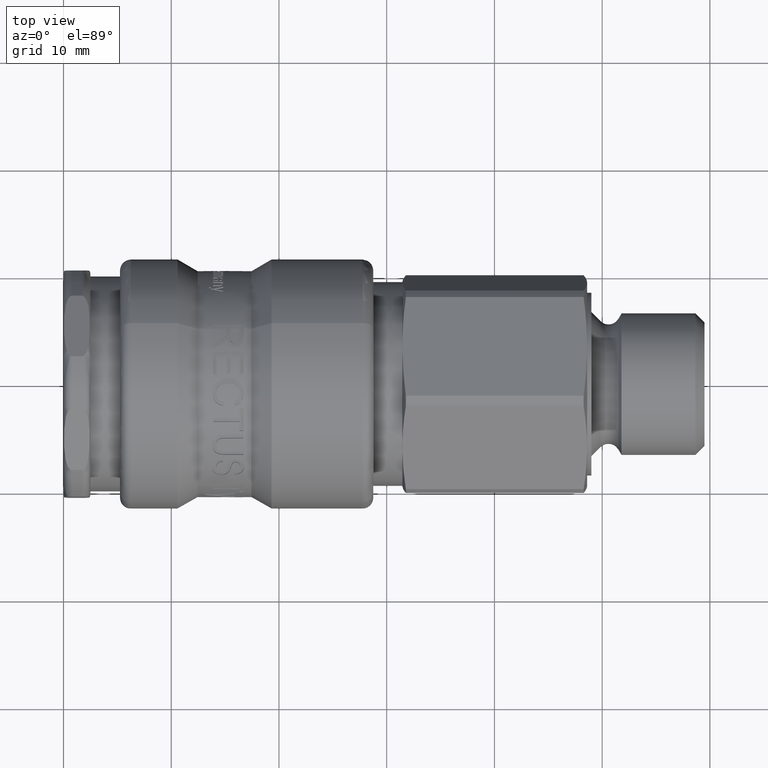
[diagram: clean part render]
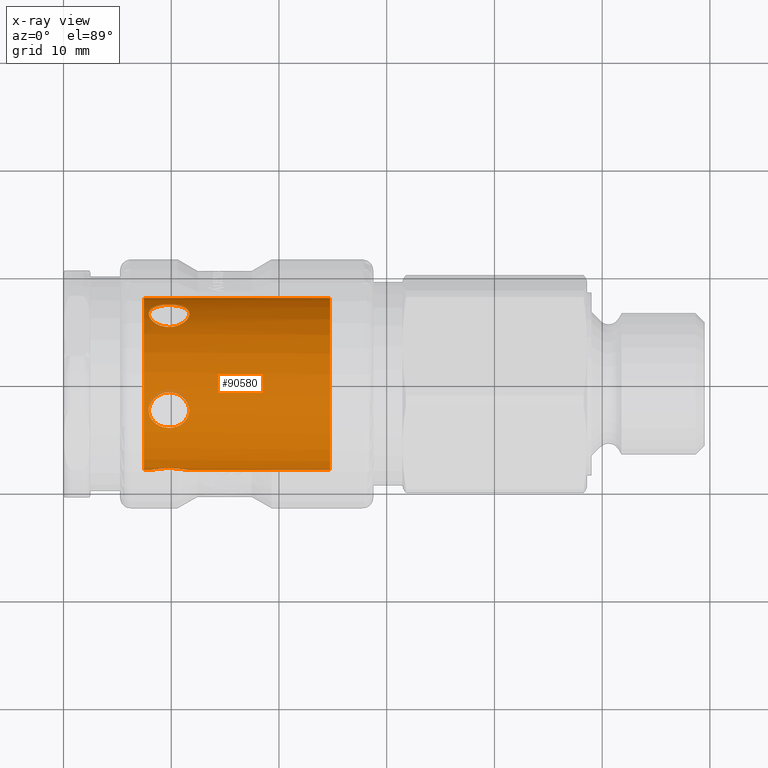
[diagram: x-ray — body ghosted, one internal face saturated and labeled with its STEP entity id]
A machine part, top view, then the same camera in x-ray: the body is ghosted and one INTERNAL B-rep face — a face not visible from any outside direction — is saturated and labeled: STEP entity #90580.
In plain terms, the highlighted cylindrical surface (bore or boss wall) has radius 8 mm, axis along (1, 0, 0).
Its self-contained STEP definition (entity closure, byte-faithful):
#89310=CARTESIAN_POINT('',(24.750000000000011,5.060005921734453,-6.196478037725322));
#89311=VERTEX_POINT('',#89310);
#89312=CARTESIAN_POINT('',(24.750000000000011,0.0,0.0));
#89313=DIRECTION('',(-1.0,0.0,0.0));
#89314=DIRECTION('',(0.0,1.0,0.0));
#89315=AXIS2_PLACEMENT_3D('',#89312,#89313,#89314);
#89316=CIRCLE('',#89315,8.0);
#89317=EDGE_CURVE('',#89311,#89311,#89316,.T.);
#89515=CARTESIAN_POINT('',(9.800000000000001,-4.184617465493961,6.818282530629169));
#89516=VERTEX_POINT('',#89515);
#89517=CARTESIAN_POINT('',(9.800000000000001,-4.184617465493961,6.818282530629169));
#89518=CARTESIAN_POINT('',(9.562953105394296,-4.184617465493961,6.818282530629169));
#89519=CARTESIAN_POINT('',(9.310429020530565,-4.143776551711571,6.843869532865576));
#89520=CARTESIAN_POINT('',(8.845972093103741,-3.976393355732788,6.942458501612481));
#89521=CARTESIAN_POINT('',(8.633969101640776,-3.849680838603420,7.014839908244293));
#89522=CARTESIAN_POINT('',(8.297897496624691,-3.552526233335560,7.169917073077848));
#89523=CARTESIAN_POINT('',(8.151299058588545,-3.361779748357164,7.263084206606292));
#89524=CARTESIAN_POINT('',(7.956174254062867,-2.934699200206196,7.445904638664429));
#89525=CARTESIAN_POINT('',(7.907707855833960,-2.698111226740381,7.535028313711059));
#89526=CARTESIAN_POINT('',(7.907707855833960,-2.246160683258776,7.681875947011400));
#89527=CARTESIAN_POINT('',(7.956174254062867,-2.002371410237687,7.748836300970494));
#89528=CARTESIAN_POINT('',(8.151299058588545,-1.549396835035074,7.851963112260614));
#89529=CARTESIAN_POINT('',(8.297897496624691,-1.340317419983883,7.888707288715832));
#89530=CARTESIAN_POINT('',(8.633969101640776,-1.008762223908913,7.937910321553241));
#89531=CARTESIAN_POINT('',(8.845972093103741,-0.863704920792864,7.953832282360840));
#89532=CARTESIAN_POINT('',(9.310429020530565,-0.670339928805082,7.972457505264603));
#89533=CARTESIAN_POINT('',(9.562953105394296,-0.622259272924392,7.975762872431679));
#89534=CARTESIAN_POINT('',(10.037046894605703,-0.622259272924392,7.975762872431679));
#89535=CARTESIAN_POINT('',(10.289570979469435,-0.670339928805082,7.972457505264603));
#89536=CARTESIAN_POINT('',(10.754027906896262,-0.863704920792866,7.953832282360840));
#89537=CARTESIAN_POINT('',(10.966030898359222,-1.008762223908913,7.937910321553241));
#89538=CARTESIAN_POINT('',(11.302102503375311,-1.340317419983883,7.888707288715832));
#89539=CARTESIAN_POINT('',(11.448700941411449,-1.549396835035075,7.851963112260613));
#89540=CARTESIAN_POINT('',(11.643825745937130,-2.002371410237688,7.748836300970493));
#89541=CARTESIAN_POINT('',(11.692292144166041,-2.246160683258776,7.681875947011401));
#89542=CARTESIAN_POINT('',(11.692292144166039,-2.698111226740381,7.535028313711059));
#89543=CARTESIAN_POINT('',(11.643825745937130,-2.934699200206196,7.445904638664429));
#89544=CARTESIAN_POINT('',(11.448700941411449,-3.361779748357164,7.263084206606292));
#89545=CARTESIAN_POINT('',(11.302102503375311,-3.552526233335560,7.169917073077848));
#89546=CARTESIAN_POINT('',(10.966030898359222,-3.849680838603420,7.014839908244293));
#89547=CARTESIAN_POINT('',(10.754027906896258,-3.976393355732788,6.942458501612481));
#89548=CARTESIAN_POINT('',(10.289570979469435,-4.143776551711571,6.843869532865576));
#89549=CARTESIAN_POINT('',(10.037046894605703,-4.184617465493961,6.818282530629169));
#89550=CARTESIAN_POINT('',(9.799999999999999,-4.184617465493961,6.818282530629169));
#89551=B_SPLINE_CURVE_WITH_KNOTS('',3,(#89517,#89518,#89519,#89520,#89521,#89522,#89523,#89524,#89525,#89526,#89527,#89528,#89529,#89530,#89531,#89532,#89533,#89534,#89535,#89536,#89537,#89538,#89539,#89540,#89541,#89542,#89543,#89544,#89545,#89546,#89547,#89548,#89549,#89550),.UNSPECIFIED.,.T.,.U.,(4,2,2,2,2,2,2,2,2,2,2,2,2,2,2,2,4),(0.0,0.071114068381711,0.142228136763422,0.213509475317651,0.284790813871880,0.356072152426109,0.427353490980339,0.498467559362050,0.569581627743760,0.640695696125471,0.711809764507182,0.783091103061411,0.854372441615641,0.925653780169870,0.996935118724099,1.068049187105810,1.139163255487521),.UNSPECIFIED.);
#89552=EDGE_CURVE('',#89516,#89516,#89551,.T.);
#89565=CARTESIAN_POINT('',(9.799999999999999,5.191454118900428,6.086772883174778));
#89566=VERTEX_POINT('',#89565);
#89567=CARTESIAN_POINT('',(9.799999999999999,5.191454118900428,6.086772883174778));
#89568=CARTESIAN_POINT('',(9.562953105394296,5.191454118900428,6.086772883174778));
#89569=CARTESIAN_POINT('',(9.310429020530565,5.228409340534381,6.055837684516744));
#89570=CARTESIAN_POINT('',(8.845972093103743,5.373897273826181,5.927112472063508));
#89571=CARTESIAN_POINT('',(8.633969101640780,5.481892403454976,5.828968791677458));
#89572=CARTESIAN_POINT('',(8.297897496624692,5.721205374583054,5.594279447363398));
#89573=CARTESIAN_POINT('',(8.151299058588551,5.868756489505430,5.441658987441790));
#89574=CARTESIAN_POINT('',(7.956174254062869,6.174604200071835,5.091975869564841));
#89575=CARTESIAN_POINT('',(7.907707855833960,6.332475556446770,4.894508065913669));
#89576=CARTESIAN_POINT('',(7.907707855833960,6.611796353552391,4.510055970765899));
#89577=CARTESIAN_POINT('',(7.956174254062869,6.750814462928448,4.298890481379056));
#89578=CARTESIAN_POINT('',(8.151299058588549,6.988870730568037,3.899953997180928));
#89579=CARTESIAN_POINT('',(8.297897496624687,7.088425611446461,3.712462232042287));
#89580=CARTESIAN_POINT('',(8.633969101640775,7.237676666608448,3.412339075625217));
#89581=CARTESIAN_POINT('',(8.845972093103740,7.297644523007768,3.279301538733819));
#89582=CARTESIAN_POINT('',(9.310429020530563,7.375111231259242,3.101156013481762));
#89583=CARTESIAN_POINT('',(9.562953105394296,7.393112562010062,3.056450007025963));
#89584=CARTESIAN_POINT('',(10.037046894605703,7.393112562010062,3.056450007025963));
#89585=CARTESIAN_POINT('',(10.289570979469435,7.375111231259242,3.101156013481762));
#89586=CARTESIAN_POINT('',(10.754027906896260,7.297644523007768,3.279301538733818));
#89587=CARTESIAN_POINT('',(10.966030898359222,7.237676666608447,3.412339075625217));
#89588=CARTESIAN_POINT('',(11.302102503375311,7.088425611446461,3.712462232042286));
#89589=CARTESIAN_POINT('',(11.448700941411449,6.988870730568037,3.899953997180926));
#89590=CARTESIAN_POINT('',(11.643825745937130,6.750814462928448,4.298890481379054));
#89591=CARTESIAN_POINT('',(11.692292144166039,6.611796353552391,4.510055970765898));
#89592=CARTESIAN_POINT('',(11.692292144166039,6.332475556446770,4.894508065913669));
#89593=CARTESIAN_POINT('',(11.643825745937130,6.174604200071833,5.091975869564841));
#89594=CARTESIAN_POINT('',(11.448700941411449,5.868756489505429,5.441658987441790));
#89595=CARTESIAN_POINT('',(11.302102503375306,5.721205374583054,5.594279447363398));
#89596=CARTESIAN_POINT('',(10.966030898359222,5.481892403454978,5.828968791677458));
#89597=CARTESIAN_POINT('',(10.754027906896260,5.373897273826182,5.927112472063509));
#89598=CARTESIAN_POINT('',(10.289570979469435,5.228409340534381,6.055837684516746));
#89599=CARTESIAN_POINT('',(10.037046894605703,5.191454118900428,6.086772883174777));
#89600=CARTESIAN_POINT('',(9.800000000000001,5.191454118900428,6.086772883174777));
#89601=B_SPLINE_CURVE_WITH_KNOTS('',3,(#89567,#89568,#89569,#89570,#89571,#89572,#89573,#89574,#89575,#89576,#89577,#89578,#89579,#89580,#89581,#89582,#89583,#89584,#89585,#89586,#89587,#89588,#89589,#89590,#89591,#89592,#89593,#89594,#89595,#89596,#89597,#89598,#89599,#89600),.UNSPECIFIED.,.T.,.U.,(4,2,2,2,2,2,2,2,2,2,2,2,2,2,2,2,4),(0.0,0.071114068381711,0.142228136763421,0.213509475317651,0.284790813871880,0.356072152426109,0.427353490980338,0.498467559362049,0.569581627743760,0.640695696125471,0.711809764507182,0.783091103061411,0.854372441615641,0.925653780169870,0.996935118724099,1.068049187105810,1.139163255487521),.UNSPECIFIED.);
#89602=EDGE_CURVE('',#89566,#89566,#89601,.T.);
#89615=CARTESIAN_POINT('',(9.800000000000001,7.393112562010062,-3.056450007025964));
#89616=VERTEX_POINT('',#89615);
#89617=CARTESIAN_POINT('',(9.800000000000001,7.393112562010062,-3.056450007025964));
#89618=CARTESIAN_POINT('',(9.562953105394296,7.393112562010062,-3.056450007025964));
#89619=CARTESIAN_POINT('',(9.310429020530565,7.375111231259241,-3.101156013481765));
#89620=CARTESIAN_POINT('',(8.845972093103741,7.297644523007766,-3.279301538733821));
#89621=CARTESIAN_POINT('',(8.633969101640776,7.237676666608445,-3.412339075625219));
#89622=CARTESIAN_POINT('',(8.297897496624691,7.088425611446461,-3.712462232042290));
#89623=CARTESIAN_POINT('',(8.151299058588547,6.988870730568037,-3.899953997180929));
#89624=CARTESIAN_POINT('',(7.956174254062868,6.750814462928446,-4.298890481379058));
#89625=CARTESIAN_POINT('',(7.907707855833960,6.611796353552388,-4.510055970765901));
#89626=CARTESIAN_POINT('',(7.907707855833960,6.332475556446769,-4.894508065913671));
#89627=CARTESIAN_POINT('',(7.956174254062868,6.174604200071833,-5.091975869564841));
#89628=CARTESIAN_POINT('',(8.151299058588549,5.868756489505430,-5.441658987441789));
#89629=CARTESIAN_POINT('',(8.297897496624689,5.721205374583052,-5.594279447363398));
#89630=CARTESIAN_POINT('',(8.633969101640775,5.481892403454975,-5.828968791677458));
#89631=CARTESIAN_POINT('',(8.845972093103738,5.373897273826181,-5.927112472063510));
#89632=CARTESIAN_POINT('',(9.310429020530563,5.228409340534379,-6.055837684516749));
#89633=CARTESIAN_POINT('',(9.562953105394296,5.191454118900428,-6.086772883174779));
#89634=CARTESIAN_POINT('',(10.037046894605703,5.191454118900428,-6.086772883174780));
#89635=CARTESIAN_POINT('',(10.289570979469435,5.228409340534379,-6.055837684516749));
#89636=CARTESIAN_POINT('',(10.754027906896260,5.373897273826179,-5.927112472063511));
#89637=CARTESIAN_POINT('',(10.966030898359222,5.481892403454975,-5.828968791677458));
#89638=CARTESIAN_POINT('',(11.302102503375311,5.721205374583052,-5.594279447363400));
#89639=CARTESIAN_POINT('',(11.448700941411449,5.868756489505431,-5.441658987441789));
#89640=CARTESIAN_POINT('',(11.643825745937129,6.174604200071836,-5.091975869564839));
#89641=CARTESIAN_POINT('',(11.692292144166041,6.332475556446770,-4.894508065913672));
#89642=CARTESIAN_POINT('',(11.692292144166039,6.611796353552388,-4.510055970765901));
#89643=CARTESIAN_POINT('',(11.643825745937130,6.750814462928445,-4.298890481379056));
#89644=CARTESIAN_POINT('',(11.448700941411449,6.988870730568035,-3.899953997180928));
#89645=CARTESIAN_POINT('',(11.302102503375306,7.088425611446461,-3.712462232042290));
#89646=CARTESIAN_POINT('',(10.966030898359222,7.237676666608445,-3.412339075625220));
#89647=CARTESIAN_POINT('',(10.754027906896262,7.297644523007767,-3.279301538733821));
#89648=CARTESIAN_POINT('',(10.289570979469438,7.375111231259242,-3.101156013481763));
#89649=CARTESIAN_POINT('',(10.037046894605703,7.393112562010062,-3.056450007025964));
#89650=CARTESIAN_POINT('',(9.800000000000001,7.393112562010062,-3.056450007025964));
#89651=B_SPLINE_CURVE_WITH_KNOTS('',3,(#89617,#89618,#89619,#89620,#89621,#89622,#89623,#89624,#89625,#89626,#89627,#89628,#89629,#89630,#89631,#89632,#89633,#89634,#89635,#89636,#89637,#89638,#89639,#89640,#89641,#89642,#89643,#89644,#89645,#89646,#89647,#89648,#89649,#89650),.UNSPECIFIED.,.T.,.U.,(4,2,2,2,2,2,2,2,2,2,2,2,2,2,2,2,4),(0.0,0.071114068381711,0.142228136763422,0.213509475317651,0.284790813871880,0.356072152426109,0.427353490980338,0.498467559362049,0.569581627743760,0.640695696125471,0.711809764507182,0.783091103061411,0.854372441615641,0.925653780169870,0.996935118724099,1.068049187105810,1.139163255487521),.UNSPECIFIED.);
#89652=EDGE_CURVE('',#89616,#89616,#89651,.T.);
#89665=CARTESIAN_POINT('',(9.800000000000001,-0.622259272924394,-7.975762872431679));
#89666=VERTEX_POINT('',#89665);
#89667=CARTESIAN_POINT('',(9.800000000000001,-0.622259272924394,-7.975762872431679));
#89668=CARTESIAN_POINT('',(9.562953105394296,-0.622259272924394,-7.975762872431679));
#89669=CARTESIAN_POINT('',(9.310429020530565,-0.670339928805084,-7.972457505264603));
#89670=CARTESIAN_POINT('',(8.845972093103741,-0.863704920792866,-7.953832282360840));
#89671=CARTESIAN_POINT('',(8.633969101640776,-1.008762223908915,-7.937910321553241));
#89672=CARTESIAN_POINT('',(8.297897496624691,-1.340317419983885,-7.888707288715832));
#89673=CARTESIAN_POINT('',(8.151299058588547,-1.549396835035076,-7.851963112260613));
#89674=CARTESIAN_POINT('',(7.956174254062868,-2.002371410237689,-7.748836300970493));
#89675=CARTESIAN_POINT('',(7.907707855833960,-2.246160683258778,-7.681875947011399));
#89676=CARTESIAN_POINT('',(7.907707855833960,-2.698111226740382,-7.535028313711059));
#89677=CARTESIAN_POINT('',(7.956174254062867,-2.934699200206198,-7.445904638664429));
#89678=CARTESIAN_POINT('',(8.151299058588545,-3.361779748357165,-7.263084206606292));
#89679=CARTESIAN_POINT('',(8.297897496624691,-3.552526233335560,-7.169917073077848));
#89680=CARTESIAN_POINT('',(8.633969101640776,-3.849680838603421,-7.014839908244293));
#89681=CARTESIAN_POINT('',(8.845972093103740,-3.976393355732788,-6.942458501612480));
#89682=CARTESIAN_POINT('',(9.310429020530563,-4.143776551711571,-6.843869532865575));
#89683=CARTESIAN_POINT('',(9.562953105394296,-4.184617465493963,-6.818282530629168));
#89684=CARTESIAN_POINT('',(10.037046894605703,-4.184617465493963,-6.818282530629168));
#89685=CARTESIAN_POINT('',(10.289570979469435,-4.143776551711571,-6.843869532865575));
#89686=CARTESIAN_POINT('',(10.754027906896260,-3.976393355732788,-6.942458501612480));
#89687=CARTESIAN_POINT('',(10.966030898359222,-3.849680838603422,-7.014839908244293));
#89688=CARTESIAN_POINT('',(11.302102503375311,-3.552526233335561,-7.169917073077848));
#89689=CARTESIAN_POINT('',(11.448700941411449,-3.361779748357165,-7.263084206606292));
#89690=CARTESIAN_POINT('',(11.643825745937130,-2.934699200206198,-7.445904638664429));
#89691=CARTESIAN_POINT('',(11.692292144166039,-2.698111226740382,-7.535028313711059));
#89692=CARTESIAN_POINT('',(11.692292144166039,-2.246160683258778,-7.681875947011399));
#89693=CARTESIAN_POINT('',(11.643825745937132,-2.002371410237689,-7.748836300970493));
#89694=CARTESIAN_POINT('',(11.448700941411452,-1.549396835035076,-7.851963112260613));
#89695=CARTESIAN_POINT('',(11.302102503375309,-1.340317419983886,-7.888707288715832));
#89696=CARTESIAN_POINT('',(10.966030898359222,-1.008762223908915,-7.937910321553241));
#89697=CARTESIAN_POINT('',(10.754027906896262,-0.863704920792868,-7.953832282360841));
#89698=CARTESIAN_POINT('',(10.289570979469435,-0.670339928805084,-7.972457505264604));
#89699=CARTESIAN_POINT('',(10.037046894605703,-0.622259272924394,-7.975762872431679));
#89700=CARTESIAN_POINT('',(9.800000000000001,-0.622259272924394,-7.975762872431679));
#89701=B_SPLINE_CURVE_WITH_KNOTS('',3,(#89667,#89668,#89669,#89670,#89671,#89672,#89673,#89674,#89675,#89676,#89677,#89678,#89679,#89680,#89681,#89682,#89683,#89684,#89685,#89686,#89687,#89688,#89689,#89690,#89691,#89692,#89693,#89694,#89695,#89696,#89697,#89698,#89699,#89700),.UNSPECIFIED.,.T.,.U.,(4,2,2,2,2,2,2,2,2,2,2,2,2,2,2,2,4),(0.0,0.071114068381711,0.142228136763422,0.213509475317651,0.284790813871880,0.356072152426109,0.427353490980338,0.498467559362049,0.569581627743760,0.640695696125471,0.711809764507182,0.783091103061412,0.854372441615641,0.925653780169870,0.996935118724099,1.068049187105810,1.139163255487521),.UNSPECIFIED.);
#89702=EDGE_CURVE('',#89666,#89666,#89701,.T.);
#89715=CARTESIAN_POINT('',(9.800000000000001,-7.777689942492136,-1.872842534346306));
#89716=VERTEX_POINT('',#89715);
#89717=CARTESIAN_POINT('',(9.800000000000001,-7.777689942492136,-1.872842534346306));
#89718=CARTESIAN_POINT('',(9.562953105394296,-7.777689942492136,-1.872842534346306));
#89719=CARTESIAN_POINT('',(9.310429020530563,-7.789404091276968,-1.826093698635955));
#89720=CARTESIAN_POINT('',(8.845972093103738,-7.831443520308294,-1.636437152581329));
#89721=CARTESIAN_POINT('',(8.633969101640775,-7.861126007551087,-1.493559302743291));
#89722=CARTESIAN_POINT('',(8.297897496624687,-7.916787332710069,-1.163026999683125));
#89723=CARTESIAN_POINT('',(8.151299058588547,-7.946450636681228,-0.952826084606536));
#89724=CARTESIAN_POINT('',(7.956174254062868,-7.988348052556398,-0.490153725879717));
#89725=CARTESIAN_POINT('',(7.907707855833959,-8.0,-0.237604461847431));
#89726=CARTESIAN_POINT('',(7.907707855833959,-8.0,0.237604461847431));
#89727=CARTESIAN_POINT('',(7.956174254062868,-7.988348052556398,0.490153725879717));
#89728=CARTESIAN_POINT('',(8.151299058588547,-7.946450636681228,0.952826084606536));
#89729=CARTESIAN_POINT('',(8.297897496624687,-7.916787332710069,1.163026999683125));
#89730=CARTESIAN_POINT('',(8.633969101640775,-7.861126007551087,1.493559302743291));
#89731=CARTESIAN_POINT('',(8.845972093103738,-7.831443520308294,1.636437152581329));
#89732=CARTESIAN_POINT('',(9.310429020530563,-7.789404091276968,1.826093698635955));
#89733=CARTESIAN_POINT('',(9.562953105394296,-7.777689942492136,1.872842534346306));
#89734=CARTESIAN_POINT('',(10.037046894605703,-7.777689942492136,1.872842534346306));
#89735=CARTESIAN_POINT('',(10.289570979469435,-7.789404091276968,1.826093698635956));
#89736=CARTESIAN_POINT('',(10.754027906896262,-7.831443520308294,1.636437152581329));
#89737=CARTESIAN_POINT('',(10.966030898359222,-7.861126007551087,1.493559302743291));
#89738=CARTESIAN_POINT('',(11.302102503375311,-7.916787332710069,1.163026999683125));
#89739=CARTESIAN_POINT('',(11.448700941411452,-7.946450636681228,0.952826084606536));
#89740=CARTESIAN_POINT('',(11.643825745937132,-7.988348052556398,0.490153725879717));
#89741=CARTESIAN_POINT('',(11.692292144166041,-8.0,0.237604461847431));
#89742=CARTESIAN_POINT('',(11.692292144166041,-8.0,-0.237604461847430));
#89743=CARTESIAN_POINT('',(11.643825745937130,-7.988348052556398,-0.490153725879716));
#89744=CARTESIAN_POINT('',(11.448700941411454,-7.946450636681228,-0.952826084606535));
#89745=CARTESIAN_POINT('',(11.302102503375311,-7.916787332710069,-1.163026999683124));
#89746=CARTESIAN_POINT('',(10.966030898359225,-7.861126007551087,-1.493559302743291));
#89747=CARTESIAN_POINT('',(10.754027906896264,-7.831443520308294,-1.636437152581328));
#89748=CARTESIAN_POINT('',(10.289570979469438,-7.789404091276968,-1.826093698635955));
#89749=CARTESIAN_POINT('',(10.037046894605703,-7.777689942492136,-1.872842534346306));
#89750=CARTESIAN_POINT('',(9.799999999999999,-7.777689942492136,-1.872842534346306));
#89751=B_SPLINE_CURVE_WITH_KNOTS('',3,(#89717,#89718,#89719,#89720,#89721,#89722,#89723,#89724,#89725,#89726,#89727,#89728,#89729,#89730,#89731,#89732,#89733,#89734,#89735,#89736,#89737,#89738,#89739,#89740,#89741,#89742,#89743,#89744,#89745,#89746,#89747,#89748,#89749,#89750),.UNSPECIFIED.,.T.,.U.,(4,2,2,2,2,2,2,2,2,2,2,2,2,2,2,2,4),(0.0,0.071114068381711,0.142228136763422,0.213509475317651,0.284790813871880,0.356072152426110,0.427353490980339,0.498467559362050,0.569581627743761,0.640695696125472,0.711809764507183,0.783091103061412,0.854372441615641,0.925653780169870,0.996935118724099,1.068049187105810,1.139163255487521),.UNSPECIFIED.);
#89752=EDGE_CURVE('',#89716,#89716,#89751,.T.);
#90539=CARTESIAN_POINT('',(7.449999999999997,7.999999999999998,0.0));
#90540=VERTEX_POINT('',#90539);
#90541=CARTESIAN_POINT('',(7.449999999999997,0.0,0.0));
#90542=DIRECTION('',(1.0,0.0,0.0));
#90543=DIRECTION('',(0.0,1.0,0.0));
#90544=AXIS2_PLACEMENT_3D('',#90541,#90542,#90543);
#90545=CIRCLE('',#90544,7.999999999999998);
#90546=EDGE_CURVE('',#90540,#90540,#90545,.T.);
#90554=CARTESIAN_POINT('',(18.699999999999999,0.0,0.0));
#90555=DIRECTION('',(1.0,0.0,0.0));
#90556=DIRECTION('',(0.0,1.0,0.0));
#90557=AXIS2_PLACEMENT_3D('',#90554,#90555,#90556);
#90558=CYLINDRICAL_SURFACE('',#90557,8.0);
#90559=ORIENTED_EDGE('',*,*,#89317,.T.);
#90560=EDGE_LOOP('',(#90559));
#90561=FACE_OUTER_BOUND('',#90560,.T.);
#90562=ORIENTED_EDGE('',*,*,#89552,.T.);
#90563=EDGE_LOOP('',(#90562));
#90564=FACE_BOUND('',#90563,.T.);
#90565=ORIENTED_EDGE('',*,*,#89602,.T.);
#90566=EDGE_LOOP('',(#90565));
#90567=FACE_BOUND('',#90566,.T.);
#90568=ORIENTED_EDGE('',*,*,#89652,.T.);
#90569=EDGE_LOOP('',(#90568));
#90570=FACE_BOUND('',#90569,.T.);
#90571=ORIENTED_EDGE('',*,*,#89702,.T.);
#90572=EDGE_LOOP('',(#90571));
#90573=FACE_BOUND('',#90572,.T.);
#90574=ORIENTED_EDGE('',*,*,#89752,.T.);
#90575=EDGE_LOOP('',(#90574));
#90576=FACE_BOUND('',#90575,.T.);
#90577=ORIENTED_EDGE('',*,*,#90546,.T.);
#90578=EDGE_LOOP('',(#90577));
#90579=FACE_BOUND('',#90578,.T.);
#90580=ADVANCED_FACE('',(#90561,#90564,#90567,#90570,#90573,#90576,#90579),#90558,.T.);